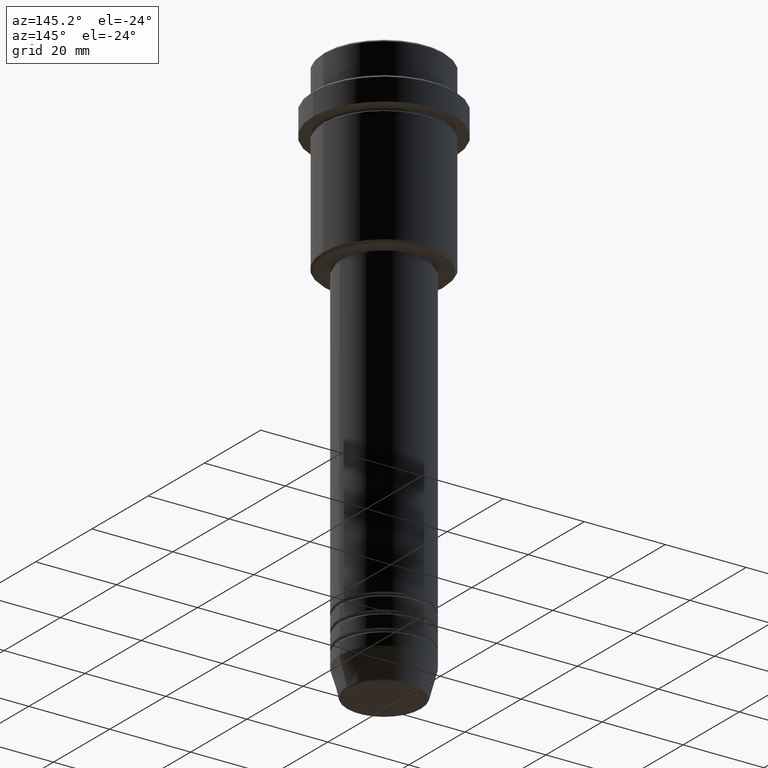
[diagram: clean part render]
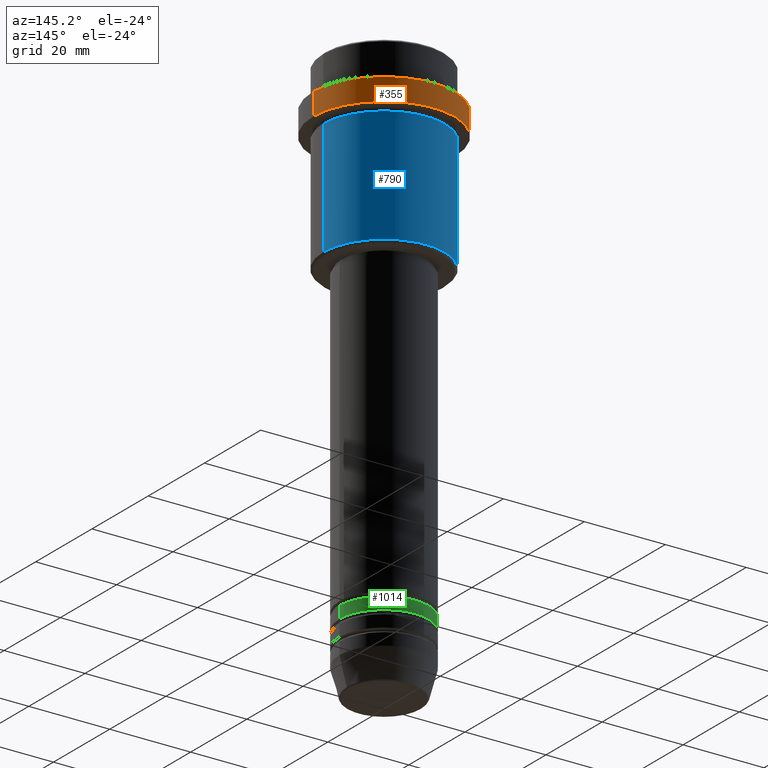
[diagram: same view with three faces highlighted in distinct colors, each labeled with its STEP entity id]
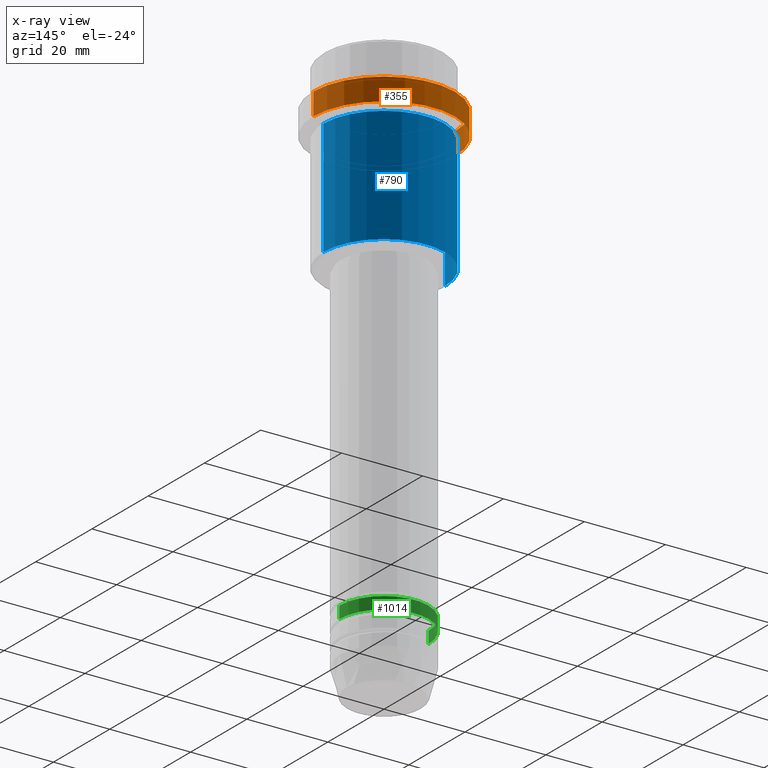
[diagram: x-ray of the same camera — body ghosted, the three highlighted faces saturated]
A machine part, auxiliary view with three faces highlighted in distinct colors.
The next image is the same camera in x-ray (body ghosted, the three faces saturated) — at least one of them is partly hidden behind the body in this view.
Their STEP definitions:

[orange] entity #355 — the highlighted cylindrical surface (partial cylindrical patch) has radius 17.5 mm, axis along (-0, -0, 1).
#67 = AXIS2_PLACEMENT_3D ( 'NONE', #1125, #351, #898 ) ;
#114 = VECTOR ( 'NONE', #1413, 1000.000000000000000 ) ;
#117 = VERTEX_POINT ( 'NONE', #310 ) ;
#133 = CARTESIAN_POINT ( 'NONE',  ( -17.50000000000000000, 2.143131898507868248E-15, -15.00000000000000000 ) ) ;
#154 = DIRECTION ( 'NONE',  ( 1.000000000000000000, 0.000000000000000000, 0.000000000000000000 ) ) ;
#156 = ORIENTED_EDGE ( 'NONE', *, *, #597, .T. ) ;
#228 = EDGE_CURVE ( 'NONE', #1395, #117, #1197, .T. ) ;
#254 = VECTOR ( 'NONE', #431, 1000.000000000000000 ) ;
#286 = EDGE_CURVE ( 'NONE', #1395, #938, #1358, .T. ) ;
#310 = CARTESIAN_POINT ( 'NONE',  ( 17.50000000000000000, 0.000000000000000000, -9.500000000000000000 ) ) ;
#325 = CARTESIAN_POINT ( 'NONE',  ( 0.000000000000000000, 0.000000000000000000, -15.00000000000000000 ) ) ;
#351 = DIRECTION ( 'NONE',  ( -0.000000000000000000, -0.000000000000000000, 1.000000000000000000 ) ) ;
#355 = ADVANCED_FACE ( 'NONE', ( #1238 ), #380, .T. ) ;
#357 = DIRECTION ( 'NONE',  ( 0.000000000000000000, 0.000000000000000000, -1.000000000000000000 ) ) ;
#380 = CYLINDRICAL_SURFACE ( 'NONE', #67, 17.50000000000000000 ) ;
#431 = DIRECTION ( 'NONE',  ( -0.000000000000000000, -0.000000000000000000, 1.000000000000000000 ) ) ;
#521 = ORIENTED_EDGE ( 'NONE', *, *, #286, .T. ) ;
#597 = EDGE_CURVE ( 'NONE', #938, #1181, #719, .T. ) ;
#719 = LINE ( 'NONE', #956, #254 ) ;
#780 = DIRECTION ( 'NONE',  ( -0.000000000000000000, -0.000000000000000000, 1.000000000000000000 ) ) ;
#791 = CARTESIAN_POINT ( 'NONE',  ( 0.000000000000000000, 0.000000000000000000, -9.500000000000000000 ) ) ;
#898 = DIRECTION ( 'NONE',  ( 1.000000000000000000, 0.000000000000000000, 0.000000000000000000 ) ) ;
#903 = EDGE_CURVE ( 'NONE', #1181, #117, #1268, .T. ) ;
#923 = AXIS2_PLACEMENT_3D ( 'NONE', #325, #780, #1224 ) ;
#938 = VERTEX_POINT ( 'NONE', #133 ) ;
#949 = ORIENTED_EDGE ( 'NONE', *, *, #228, .F. ) ;
#956 = CARTESIAN_POINT ( 'NONE',  ( -17.50000000000000000, 2.143131898507868248E-15, 0.000000000000000000 ) ) ;
#959 = ORIENTED_EDGE ( 'NONE', *, *, #903, .T. ) ;
#1053 = EDGE_LOOP ( 'NONE', ( #521, #156, #959, #949 ) ) ;
#1092 = CARTESIAN_POINT ( 'NONE',  ( 17.50000000000000000, 0.000000000000000000, 0.000000000000000000 ) ) ;
#1099 = CARTESIAN_POINT ( 'NONE',  ( -17.50000000000000000, 2.143131898507868248E-15, -9.500000000000000000 ) ) ;
#1125 = CARTESIAN_POINT ( 'NONE',  ( 0.000000000000000000, 0.000000000000000000, 0.000000000000000000 ) ) ;
#1181 = VERTEX_POINT ( 'NONE', #1099 ) ;
#1197 = LINE ( 'NONE', #1092, #114 ) ;
#1224 = DIRECTION ( 'NONE',  ( 1.000000000000000000, 0.000000000000000000, 0.000000000000000000 ) ) ;
#1226 = CARTESIAN_POINT ( 'NONE',  ( 17.50000000000000000, 0.000000000000000000, -15.00000000000000000 ) ) ;
#1238 = FACE_OUTER_BOUND ( 'NONE', #1053, .T. ) ;
#1268 = CIRCLE ( 'NONE', #1340, 17.50000000000000000 ) ;
#1340 = AXIS2_PLACEMENT_3D ( 'NONE', #791, #357, #154 ) ;
#1358 = CIRCLE ( 'NONE', #923, 17.50000000000000000 ) ;
#1395 = VERTEX_POINT ( 'NONE', #1226 ) ;
#1413 = DIRECTION ( 'NONE',  ( -0.000000000000000000, -0.000000000000000000, 1.000000000000000000 ) ) ;

[blue] entity #790 — the highlighted cylindrical surface (partial cylindrical patch) has radius 15 mm, axis along (-0, -0, 1).
#11 = CARTESIAN_POINT ( 'NONE',  ( 0.000000000000000000, 0.000000000000000000, -16.00000000000000000 ) ) ;
#21 = CARTESIAN_POINT ( 'NONE',  ( 15.00000000000000178, 0.000000000000000000, -16.00000000000000000 ) ) ;
#26 = AXIS2_PLACEMENT_3D ( 'NONE', #11, #987, #365 ) ;
#66 = CIRCLE ( 'NONE', #26, 15.00000000000000178 ) ;
#101 = DIRECTION ( 'NONE',  ( -0.000000000000000000, -0.000000000000000000, 1.000000000000000000 ) ) ;
#186 = ORIENTED_EDGE ( 'NONE', *, *, #390, .T. ) ;
#230 = AXIS2_PLACEMENT_3D ( 'NONE', #1101, #101, #1096 ) ;
#241 = EDGE_CURVE ( 'NONE', #1000, #801, #66, .T. ) ;
#249 = EDGE_LOOP ( 'NONE', ( #1113, #186, #653, #1200 ) ) ;
#323 = DIRECTION ( 'NONE',  ( -0.000000000000000000, -0.000000000000000000, 1.000000000000000000 ) ) ;
#340 = LINE ( 'NONE', #1123, #1110 ) ;
#365 = DIRECTION ( 'NONE',  ( 1.000000000000000000, 0.000000000000000000, 0.000000000000000000 ) ) ;
#390 = EDGE_CURVE ( 'NONE', #1325, #801, #986, .T. ) ;
#430 = CYLINDRICAL_SURFACE ( 'NONE', #230, 15.00000000000000000 ) ;
#443 = CARTESIAN_POINT ( 'NONE',  ( -15.00000000000000355, 1.836970198721029983E-15, -16.00000000000000000 ) ) ;
#549 = FACE_OUTER_BOUND ( 'NONE', #249, .T. ) ;
#653 = ORIENTED_EDGE ( 'NONE', *, *, #241, .F. ) ;
#659 = AXIS2_PLACEMENT_3D ( 'NONE', #1405, #323, #1086 ) ;
#686 = VERTEX_POINT ( 'NONE', #1187 ) ;
#731 = VECTOR ( 'NONE', #875, 1000.000000000000000 ) ;
#790 = ADVANCED_FACE ( 'NONE', ( #549 ), #430, .T. ) ;
#801 = VERTEX_POINT ( 'NONE', #443 ) ;
#812 = DIRECTION ( 'NONE',  ( -0.000000000000000000, -0.000000000000000000, 1.000000000000000000 ) ) ;
#835 = EDGE_CURVE ( 'NONE', #686, #1325, #1359, .T. ) ;
#875 = DIRECTION ( 'NONE',  ( -0.000000000000000000, -0.000000000000000000, 1.000000000000000000 ) ) ;
#945 = EDGE_CURVE ( 'NONE', #686, #1000, #340, .T. ) ;
#981 = CARTESIAN_POINT ( 'NONE',  ( -15.00000000000000000, 1.836970198721029589E-15, 0.000000000000000000 ) ) ;
#986 = LINE ( 'NONE', #981, #731 ) ;
#987 = DIRECTION ( 'NONE',  ( -0.000000000000000000, -0.000000000000000000, 1.000000000000000000 ) ) ;
#1000 = VERTEX_POINT ( 'NONE', #21 ) ;
#1083 = CARTESIAN_POINT ( 'NONE',  ( -15.00000000000000000, 1.836970198721029589E-15, -44.50000000000001421 ) ) ;
#1086 = DIRECTION ( 'NONE',  ( -1.000000000000000000, 0.000000000000000000, 0.000000000000000000 ) ) ;
#1096 = DIRECTION ( 'NONE',  ( 1.000000000000000000, 0.000000000000000000, 0.000000000000000000 ) ) ;
#1101 = CARTESIAN_POINT ( 'NONE',  ( 0.000000000000000000, 0.000000000000000000, 0.000000000000000000 ) ) ;
#1110 = VECTOR ( 'NONE', #812, 1000.000000000000000 ) ;
#1113 = ORIENTED_EDGE ( 'NONE', *, *, #835, .T. ) ;
#1123 = CARTESIAN_POINT ( 'NONE',  ( 15.00000000000000000, 0.000000000000000000, 0.000000000000000000 ) ) ;
#1187 = CARTESIAN_POINT ( 'NONE',  ( 15.00000000000000000, 0.000000000000000000, -44.50000000000001421 ) ) ;
#1200 = ORIENTED_EDGE ( 'NONE', *, *, #945, .F. ) ;
#1325 = VERTEX_POINT ( 'NONE', #1083 ) ;
#1359 = CIRCLE ( 'NONE', #659, 15.00000000000000000 ) ;
#1405 = CARTESIAN_POINT ( 'NONE',  ( 0.000000000000000000, 0.000000000000000000, -44.50000000000001421 ) ) ;

[green] entity #1014 — the highlighted cylindrical surface (partial cylindrical patch) has radius 11 mm, axis along (-0, -0, 1).
#1 = CARTESIAN_POINT ( 'NONE',  ( -11.00000000000000000, 1.347111479062088405E-15, -124.9999999999999005 ) ) ;
#59 = CARTESIAN_POINT ( 'NONE',  ( 0.000000000000000000, 0.000000000000000000, 0.000000000000000000 ) ) ;
#74 = VECTOR ( 'NONE', #636, 1000.000000000000000 ) ;
#84 = EDGE_CURVE ( 'NONE', #447, #1229, #159, .T. ) ;
#157 = CYLINDRICAL_SURFACE ( 'NONE', #1203, 11.00000000000000000 ) ;
#159 = CIRCLE ( 'NONE', #1011, 11.00000000000000000 ) ;
#212 = ORIENTED_EDGE ( 'NONE', *, *, #747, .T. ) ;
#237 = CARTESIAN_POINT ( 'NONE',  ( 0.000000000000000000, 0.000000000000000000, -124.9999999999999005 ) ) ;
#242 = DIRECTION ( 'NONE',  ( -0.000000000000000000, -0.000000000000000000, 1.000000000000000000 ) ) ;
#250 = ORIENTED_EDGE ( 'NONE', *, *, #1215, .F. ) ;
#320 = LINE ( 'NONE', #512, #74 ) ;
#397 = CIRCLE ( 'NONE', #1320, 11.00000000000000000 ) ;
#398 = VERTEX_POINT ( 'NONE', #1 ) ;
#400 = VERTEX_POINT ( 'NONE', #907 ) ;
#405 = DIRECTION ( 'NONE',  ( 1.000000000000000000, 0.000000000000000000, 0.000000000000000000 ) ) ;
#418 = VECTOR ( 'NONE', #628, 1000.000000000000000 ) ;
#434 = ORIENTED_EDGE ( 'NONE', *, *, #84, .F. ) ;
#447 = VERTEX_POINT ( 'NONE', #472 ) ;
#472 = CARTESIAN_POINT ( 'NONE',  ( 11.00000000000000000, 0.000000000000000000, -121.9999999999999005 ) ) ;
#495 = DIRECTION ( 'NONE',  ( -0.000000000000000000, -0.000000000000000000, 1.000000000000000000 ) ) ;
#512 = CARTESIAN_POINT ( 'NONE',  ( 11.00000000000000000, 0.000000000000000000, 0.000000000000000000 ) ) ;
#620 = LINE ( 'NONE', #655, #418 ) ;
#628 = DIRECTION ( 'NONE',  ( -0.000000000000000000, -0.000000000000000000, 1.000000000000000000 ) ) ;
#636 = DIRECTION ( 'NONE',  ( -0.000000000000000000, -0.000000000000000000, 1.000000000000000000 ) ) ;
#655 = CARTESIAN_POINT ( 'NONE',  ( -11.00000000000000000, 1.347111479062088405E-15, 0.000000000000000000 ) ) ;
#718 = DIRECTION ( 'NONE',  ( -0.000000000000000000, -0.000000000000000000, 1.000000000000000000 ) ) ;
#747 = EDGE_CURVE ( 'NONE', #398, #1229, #620, .T. ) ;
#832 = CARTESIAN_POINT ( 'NONE',  ( 0.000000000000000000, 0.000000000000000000, -121.9999999999999005 ) ) ;
#907 = CARTESIAN_POINT ( 'NONE',  ( 11.00000000000000000, 0.000000000000000000, -124.9999999999999005 ) ) ;
#934 = FACE_OUTER_BOUND ( 'NONE', #952, .T. ) ;
#952 = EDGE_LOOP ( 'NONE', ( #1122, #212, #434, #250 ) ) ;
#1011 = AXIS2_PLACEMENT_3D ( 'NONE', #832, #718, #1168 ) ;
#1014 = ADVANCED_FACE ( 'NONE', ( #934 ), #157, .T. ) ;
#1017 = DIRECTION ( 'NONE',  ( 1.000000000000000000, 0.000000000000000000, 0.000000000000000000 ) ) ;
#1122 = ORIENTED_EDGE ( 'NONE', *, *, #1343, .T. ) ;
#1168 = DIRECTION ( 'NONE',  ( 1.000000000000000000, 0.000000000000000000, 0.000000000000000000 ) ) ;
#1199 = CARTESIAN_POINT ( 'NONE',  ( -11.00000000000000000, 1.347111479062088405E-15, -121.9999999999999005 ) ) ;
#1203 = AXIS2_PLACEMENT_3D ( 'NONE', #59, #495, #405 ) ;
#1215 = EDGE_CURVE ( 'NONE', #400, #447, #320, .T. ) ;
#1229 = VERTEX_POINT ( 'NONE', #1199 ) ;
#1320 = AXIS2_PLACEMENT_3D ( 'NONE', #237, #242, #1017 ) ;
#1343 = EDGE_CURVE ( 'NONE', #400, #398, #397, .T. ) ;